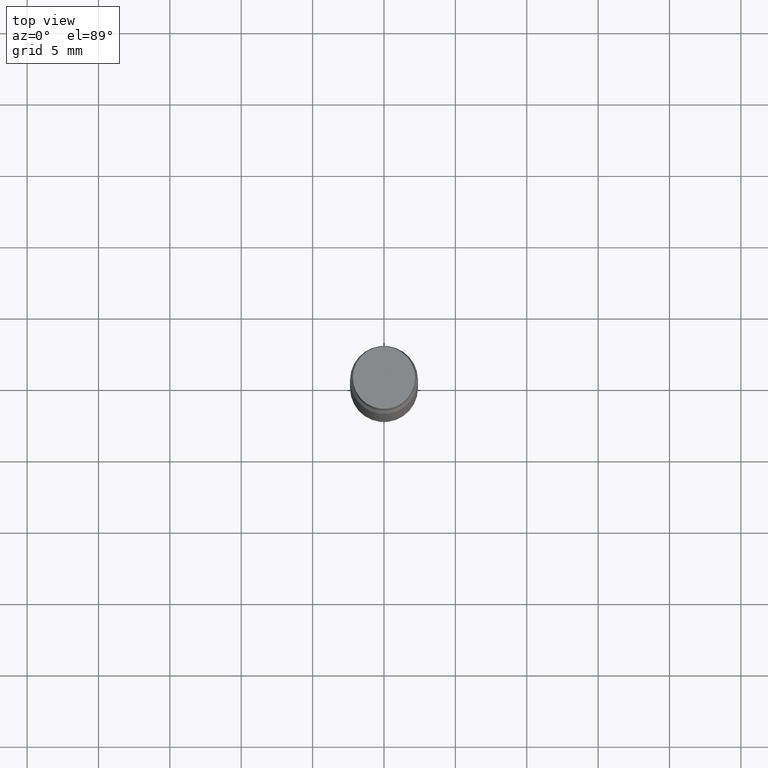
[diagram: clean part render]
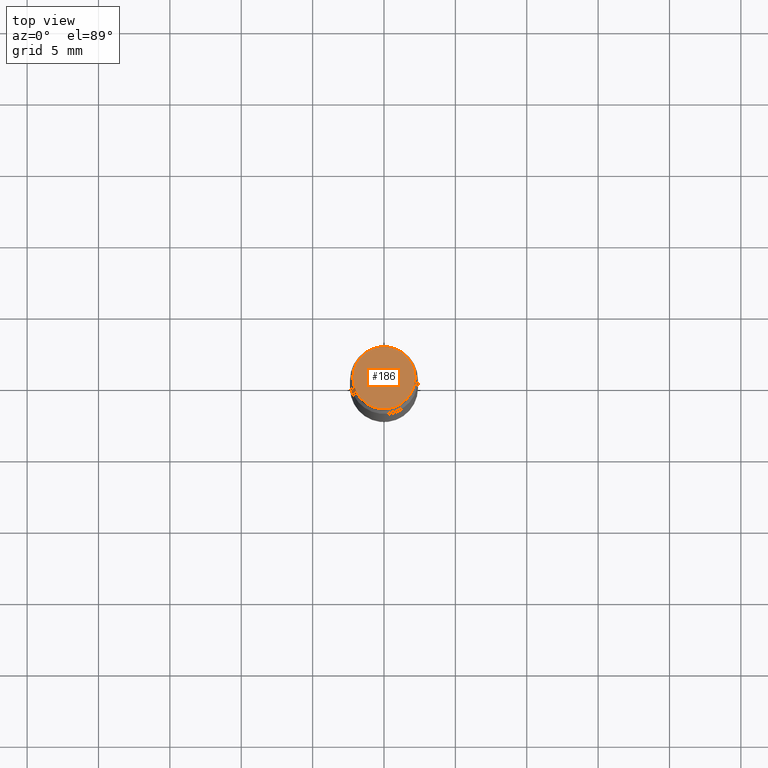
[diagram: same view with one face highlighted and labeled with its STEP entity id]
A machine part, top view. The second image highlights one B-rep face of the part: STEP entity #186.
In plain terms, the highlighted planar face has unit normal (-0, -0, -1).
Its self-contained STEP definition (entity closure, byte-faithful):
#35 = DIRECTION ( 'NONE',  ( 1.000000000000000000, -6.982962677686265922E-15, 2.260776888683160832E-33 ) ) ;
#44 = CARTESIAN_POINT ( 'NONE',  ( -0.08594999999999998475, 4.526196421250688572E-17, 2.731847993664282447E-16 ) ) ;
#110 = AXIS2_PLACEMENT_3D ( 'NONE', #430, #786, #875 ) ;
#132 = CIRCLE ( 'NONE', #318, 0.08594999999999998475 ) ;
#186 = ADVANCED_FACE ( 'NONE', ( #233 ), #533, .F. ) ;
#198 = CARTESIAN_POINT ( 'NONE',  ( 0.08594999999999998475, -5.998618860291546470E-16, 2.731847993664263218E-16 ) ) ;
#215 = VERTEX_POINT ( 'NONE', #198 ) ;
#220 = CIRCLE ( 'NONE', #110, 0.08594999999999998475 ) ;
#233 = FACE_OUTER_BOUND ( 'NONE', #632, .T. ) ;
#247 = EDGE_CURVE ( 'NONE', #280, #215, #220, .T. ) ;
#280 = VERTEX_POINT ( 'NONE', #44 ) ;
#318 = AXIS2_PLACEMENT_3D ( 'NONE', #564, #555, #647 ) ;
#328 = EDGE_CURVE ( 'NONE', #215, #280, #132, .T. ) ;
#335 = AXIS2_PLACEMENT_3D ( 'NONE', #872, #523, #35 ) ;
#430 = CARTESIAN_POINT ( 'NONE',  ( 4.890937612370273194E-29, 3.237561179798315247E-19, 2.731847993664263218E-16 ) ) ;
#523 = DIRECTION ( 'NONE',  ( -2.438088387897959208E-29, -3.491805094961123683E-15, -1.000000000000000000 ) ) ;
#533 = PLANE ( 'NONE',  #335 ) ;
#555 = DIRECTION ( 'NONE',  ( 2.445468806185136597E-29, 3.491805094961124077E-15, 1.000000000000000000 ) ) ;
#564 = CARTESIAN_POINT ( 'NONE',  ( 4.890937612370273194E-29, 3.237561179798315247E-19, 2.731847993664263218E-16 ) ) ;
#632 = EDGE_LOOP ( 'NONE', ( #964, #735 ) ) ;
#647 = DIRECTION ( 'NONE',  ( 1.000000000000000000, -6.982962677686266711E-15, 0.000000000000000000 ) ) ;
#735 = ORIENTED_EDGE ( 'NONE', *, *, #247, .T. ) ;
#786 = DIRECTION ( 'NONE',  ( 2.445468806185136597E-29, 3.491805094961124077E-15, 1.000000000000000000 ) ) ;
#872 = CARTESIAN_POINT ( 'NONE',  ( 4.932139071496267018E-29, 5.932659062782421294E-17, 2.731847993664263218E-16 ) ) ;
#875 = DIRECTION ( 'NONE',  ( 1.000000000000000000, -6.982962677686266711E-15, 0.000000000000000000 ) ) ;
#964 = ORIENTED_EDGE ( 'NONE', *, *, #328, .T. ) ;